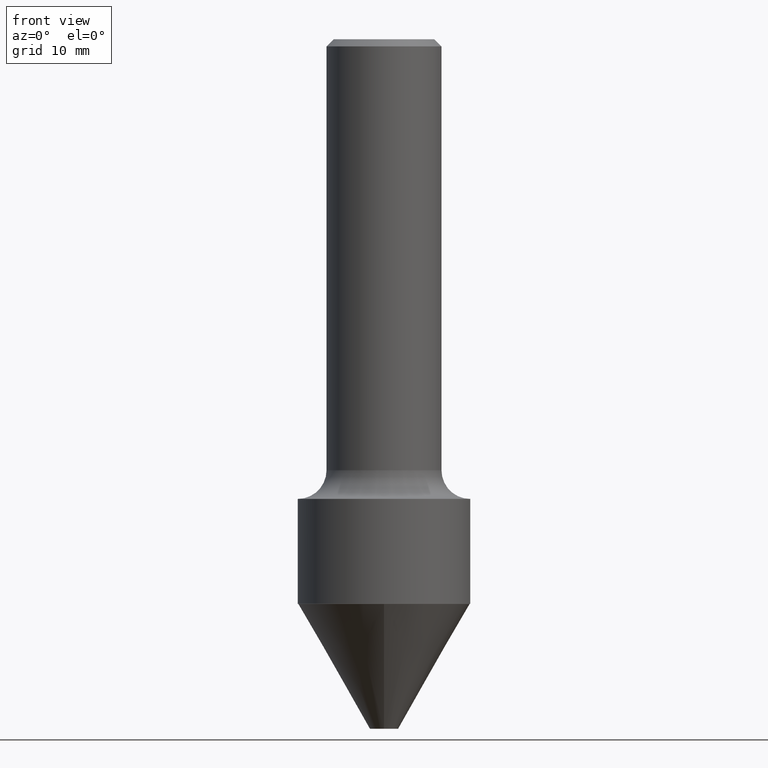
[diagram: clean part render]
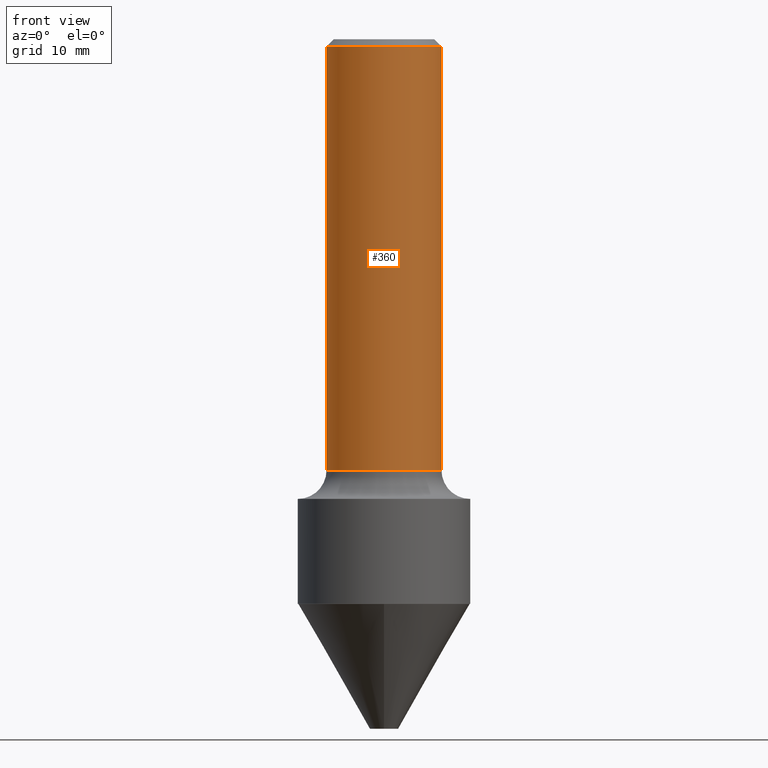
[diagram: same view with one face highlighted and labeled with its STEP entity id]
A machine part, front view. The second image highlights one B-rep face of the part: STEP entity #360.
In plain terms, the highlighted cylindrical surface (partial cylindrical patch) has radius 6.35 mm, axis along (-0, 0, 1).
Its self-contained STEP definition (entity closure, byte-faithful):
#34 = CARTESIAN_POINT ( 'NONE',  ( 0.2500000000000001110, -1.745740669421567664E-15, 1.219044193948984649E-29 ) ) ;
#49 = ORIENTED_EDGE ( 'NONE', *, *, #286, .F. ) ;
#55 = CARTESIAN_POINT ( 'NONE',  ( 0.000000000000000000, 0.000000000000000000, 0.000000000000000000 ) ) ;
#66 = CIRCLE ( 'NONE', #512, 0.2500000000000002220 ) ;
#77 = VECTOR ( 'NONE', #414, 39.37007874015748143 ) ;
#78 = VERTEX_POINT ( 'NONE', #128 ) ;
#81 = EDGE_CURVE ( 'NONE', #126, #78, #337, .T. ) ;
#85 = ORIENTED_EDGE ( 'NONE', *, *, #475, .T. ) ;
#87 = CARTESIAN_POINT ( 'NONE',  ( 4.585254011597131679E-29, -6.546527510330899496E-15, -1.875000000000000444 ) ) ;
#126 = VERTEX_POINT ( 'NONE', #335 ) ;
#128 = CARTESIAN_POINT ( 'NONE',  ( -0.2500000000000000000, 1.636806451649659727E-15, -0.03120000000000020673 ) ) ;
#149 = VECTOR ( 'NONE', #243, 39.37007874015748143 ) ;
#151 = DIRECTION ( 'NONE',  ( -2.445468806185136597E-29, 3.491481338843145583E-15, 1.000000000000000000 ) ) ;
#162 = LINE ( 'NONE', #34, #77 ) ;
#178 = CARTESIAN_POINT ( 'NONE',  ( 0.2500000000000000000, -1.824058717214789841E-15, -0.03120000000000020673 ) ) ;
#205 = ORIENTED_EDGE ( 'NONE', *, *, #81, .F. ) ;
#243 = DIRECTION ( 'NONE',  ( -2.445468806185136877E-29, 3.491481338843145188E-15, 1.000000000000000000 ) ) ;
#246 = VERTEX_POINT ( 'NONE', #178 ) ;
#264 = CARTESIAN_POINT ( 'NONE',  ( 7.629862675297676574E-31, -1.089342177719068640E-16, -0.03120000000000020673 ) ) ;
#268 = DIRECTION ( 'NONE',  ( -2.445468806185136597E-29, 3.491481338843145583E-15, 1.000000000000000000 ) ) ;
#286 = EDGE_CURVE ( 'NONE', #78, #246, #463, .T. ) ;
#294 = CARTESIAN_POINT ( 'NONE',  ( -0.2500000000000001110, 1.776356839400251254E-15, -1.229733772563727146E-29 ) ) ;
#301 = DIRECTION ( 'NONE',  ( -2.445468806185136597E-29, 3.491481338843145583E-15, 1.000000000000000000 ) ) ;
#305 = FACE_OUTER_BOUND ( 'NONE', #517, .T. ) ;
#307 = VERTEX_POINT ( 'NONE', #505 ) ;
#335 = CARTESIAN_POINT ( 'NONE',  ( -0.2500000000000002776, -4.544299044758281461E-15, -1.875000000000000444 ) ) ;
#336 = DIRECTION ( 'NONE',  ( 1.000000000000000000, -6.982962677686268288E-15, 0.000000000000000000 ) ) ;
#337 = LINE ( 'NONE', #294, #149 ) ;
#345 = AXIS2_PLACEMENT_3D ( 'NONE', #264, #301, #495 ) ;
#349 = ORIENTED_EDGE ( 'NONE', *, *, #398, .T. ) ;
#360 = ADVANCED_FACE ( 'NONE', ( #305 ), #458, .T. ) ;
#361 = AXIS2_PLACEMENT_3D ( 'NONE', #55, #268, #385 ) ;
#385 = DIRECTION ( 'NONE',  ( 1.000000000000000000, -6.982962677686267499E-15, 4.876176775795936353E-29 ) ) ;
#398 = EDGE_CURVE ( 'NONE', #126, #307, #66, .T. ) ;
#414 = DIRECTION ( 'NONE',  ( -2.445468806185136877E-29, 3.491481338843145188E-15, 1.000000000000000000 ) ) ;
#458 = CYLINDRICAL_SURFACE ( 'NONE', #361, 0.2500000000000001110 ) ;
#463 = CIRCLE ( 'NONE', #345, 0.2500000000000000000 ) ;
#475 = EDGE_CURVE ( 'NONE', #307, #246, #162, .T. ) ;
#495 = DIRECTION ( 'NONE',  ( 1.000000000000000000, -6.982962677686266711E-15, 0.000000000000000000 ) ) ;
#505 = CARTESIAN_POINT ( 'NONE',  ( 0.2500000000000002220, -8.292268179752468540E-15, -1.875000000000000444 ) ) ;
#512 = AXIS2_PLACEMENT_3D ( 'NONE', #87, #151, #336 ) ;
#517 = EDGE_LOOP ( 'NONE', ( #205, #349, #85, #49 ) ) ;